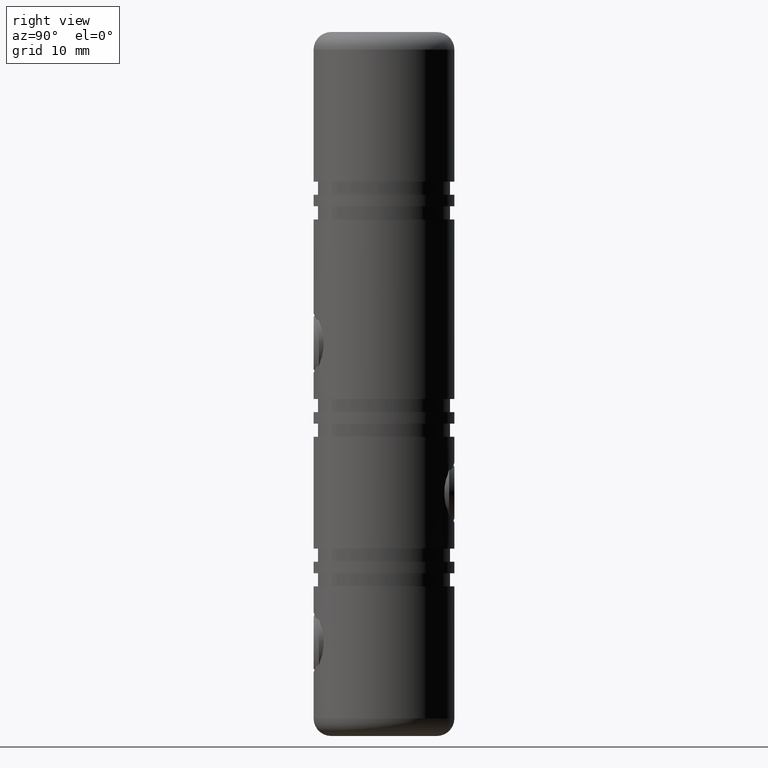
[diagram: clean part render]
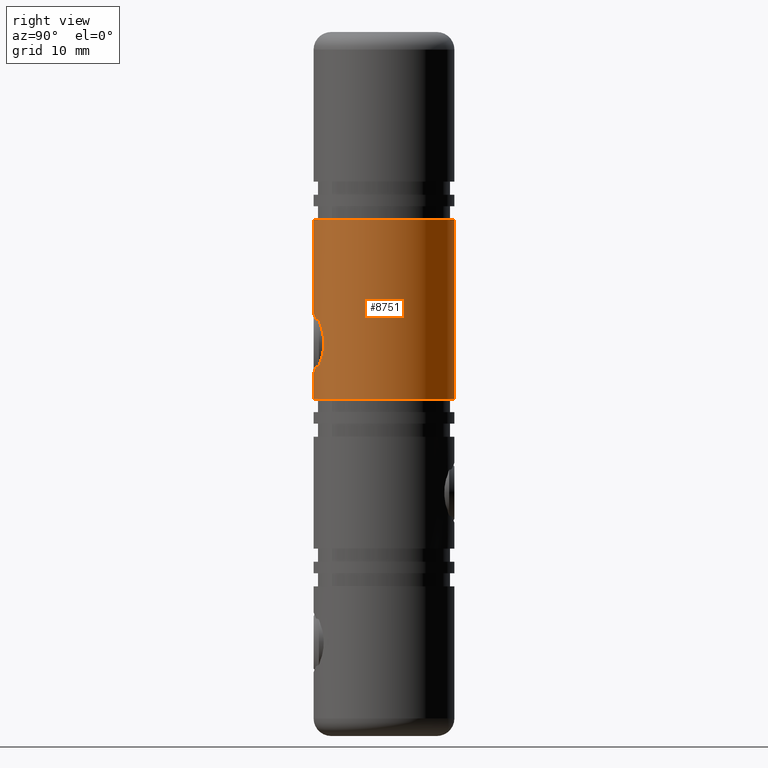
[diagram: same view with one face highlighted and labeled with its STEP entity id]
A machine part, right view. The second image highlights one B-rep face of the part: STEP entity #8751.
In plain terms, the highlighted cylindrical surface (partial cylindrical patch) has radius 8 mm, axis along (0, 0, 1).
Its self-contained STEP definition (entity closure, byte-faithful):
#218 = VERTEX_POINT ( 'NONE', #11704 ) ;
#317 = CARTESIAN_POINT ( 'NONE',  ( 3.377083083094456000, -7.252426248789273400, 5.103285964395587900 ) ) ;
#373 = CARTESIAN_POINT ( 'NONE',  ( 2.946162588092068100, -7.438906165836130800, 2.938674497496888400 ) ) ;
#820 = DIRECTION ( 'NONE',  ( 0.0000000000000000000, -1.000000000000000000, 0.0000000000000000000 ) ) ;
#826 = VERTEX_POINT ( 'NONE', #13082 ) ;
#1173 = ORIENTED_EDGE ( 'NONE', *, *, #14198, .T. ) ;
#1304 = CARTESIAN_POINT ( 'NONE',  ( 0.0000000000000000000, -7.999999999999984900, 1.249999999999996000 ) ) ;
#1361 = VERTEX_POINT ( 'NONE', #14774 ) ;
#1365 = AXIS2_PLACEMENT_3D ( 'NONE', #6512, #3832, #10785 ) ;
#1530 = CARTESIAN_POINT ( 'NONE',  ( 2.701287393388047700, -7.531277600479164400, 6.726361367731029400 ) ) ;
#1587 = CARTESIAN_POINT ( 'NONE',  ( 2.250321709453293000, -7.678725574128295200, 7.208289546428752600 ) ) ;
#1708 = CARTESIAN_POINT ( 'NONE',  ( 3.399927834273003000, -7.241580678833905400, 4.875250799605546500 ) ) ;
#2044 = ORIENTED_EDGE ( 'NONE', *, *, #16742, .T. ) ;
#2093 = VERTEX_POINT ( 'NONE', #1304 ) ;
#2097 = CIRCLE ( 'NONE', #1365, 7.999999999999984900 ) ;
#2242 = ORIENTED_EDGE ( 'NONE', *, *, #5490, .F. ) ;
#2623 = DIRECTION ( 'NONE',  ( -0.0000000000000000000, 5.922595424346115800E-017, 1.000000000000000000 ) ) ;
#2699 = DIRECTION ( 'NONE',  ( -0.0000000000000000000, 5.922595424346115800E-017, 1.000000000000000000 ) ) ;
#3084 = CARTESIAN_POINT ( 'NONE',  ( 3.378187306158738900, -7.251913695931520500, 4.203689532153308800 ) ) ;
#3142 = CARTESIAN_POINT ( 'NONE',  ( 2.561623328396617900, -7.580557876596306400, 2.403481479404935500 ) ) ;
#3173 = VECTOR ( 'NONE', #4015, 1000.000000000000000 ) ;
#3832 = DIRECTION ( 'NONE',  ( -0.0000000000000000000, 5.922595424346115800E-017, 1.000000000000000000 ) ) ;
#4015 = DIRECTION ( 'NONE',  ( -0.0000000000000000000, 5.922595424346115800E-017, 1.000000000000000000 ) ) ;
#4129 = VECTOR ( 'NONE', #2623, 1000.000000000000000 ) ;
#4252 = CARTESIAN_POINT ( 'NONE',  ( 1.518421302072229300, -7.857380380396133300, 1.599634141178118100 ) ) ;
#4491 = CARTESIAN_POINT ( 'NONE',  ( 1.713622867567703400, -7.816565416602419900, 1.705223448706502800 ) ) ;
#4833 = ORIENTED_EDGE ( 'NONE', *, *, #7416, .F. ) ;
#5490 = EDGE_CURVE ( 'NONE', #11441, #826, #12168, .T. ) ;
#5631 = CARTESIAN_POINT ( 'NONE',  ( 1.104433361339428800, -7.926175410825909900, 1.426560521180307000 ) ) ;
#5748 = CARTESIAN_POINT ( 'NONE',  ( 0.4514605358758933000, -7.990308472804947800, 8.027373976999609100 ) ) ;
#5808 = CARTESIAN_POINT ( 'NONE',  ( 3.289087680130576200, -7.292756952013720100, 3.759357118922046000 ) ) ;
#6499 = ORIENTED_EDGE ( 'NONE', *, *, #17101, .T. ) ;
#6512 = CARTESIAN_POINT ( 'NONE',  ( 0.0000000000000000000, -2.469722291952331200E-015, -1.700000000000013900 ) ) ;
#6784 = LINE ( 'NONE', #14992, #3173 ) ;
#7011 = CARTESIAN_POINT ( 'NONE',  ( 0.4541065086489173800, -7.990117268299885100, 1.273080807165897700 ) ) ;
#7127 = CARTESIAN_POINT ( 'NONE',  ( 2.945959785431274900, -7.438979555004714900, 6.361593133225530200 ) ) ;
#7190 = CARTESIAN_POINT ( 'NONE',  ( 3.052721761500027100, -7.395235532313893900, 3.136683952065348900 ) ) ;
#7231 = VECTOR ( 'NONE', #17158, 1000.000000000000000 ) ;
#7251 = CARTESIAN_POINT ( 'NONE',  ( 2.079259359964982200, -7.727354909873117400, 7.349091149184431500 ) ) ;
#7416 = EDGE_CURVE ( 'NONE', #826, #1361, #8215, .T. ) ;
#7460 = EDGE_CURVE ( 'NONE', #218, #2093, #15949, .T. ) ;
#7634 = DIRECTION ( 'NONE',  ( -0.0000000000000000000, 5.922595424346115800E-017, 1.000000000000000000 ) ) ;
#8215 = CIRCLE ( 'NONE', #17508, 7.999999999999983100 ) ;
#8397 = CARTESIAN_POINT ( 'NONE',  ( 0.0000000000000000000, -7.999999999999984900, 1.249999999999996000 ) ) ;
#8518 = CARTESIAN_POINT ( 'NONE',  ( 3.052572273714785600, -7.395296992258885800, 6.163601077100327800 ) ) ;
#8580 = CARTESIAN_POINT ( 'NONE',  ( 0.8919228570024732000, -7.953195566763620100, 7.938608400695355400 ) ) ;
#8751 = ADVANCED_FACE ( 'NONE', ( #14851 ), #16353, .T. ) ;
#9367 = CARTESIAN_POINT ( 'NONE',  ( 0.0000000000000000000, -7.999999999999983100, 40.00000000000000000 ) ) ;
#9477 = CARTESIAN_POINT ( 'NONE',  ( -8.690533494021589800E-021, -7.999999999999984900, 8.049999999999990100 ) ) ;
#9772 = CARTESIAN_POINT ( 'NONE',  ( 0.2239787353389016400, -7.999999999999986700, 8.049999999999993600 ) ) ;
#9891 = CARTESIAN_POINT ( 'NONE',  ( 2.562422619992452200, -7.580287893962848900, 6.895614284768082100 ) ) ;
#9909 = AXIS2_PLACEMENT_3D ( 'NONE', #17692, #2699, #12204 ) ;
#9954 = CARTESIAN_POINT ( 'NONE',  ( 1.714033983148292700, -7.816483921416006500, 7.594571279867495600 ) ) ;
#10204 = CARTESIAN_POINT ( 'NONE',  ( 0.0000000000000000000, -7.999999999999983100, 40.00000000000000000 ) ) ;
#10785 = DIRECTION ( 'NONE',  ( 0.0000000000000000000, -1.000000000000000000, 5.421010862427532600E-017 ) ) ;
#11280 = CARTESIAN_POINT ( 'NONE',  ( 3.400071815042919000, -7.241513078002110000, 4.426933073858969600 ) ) ;
#11328 = CARTESIAN_POINT ( 'NONE',  ( 2.700751742660142600, -7.531476546076896200, 2.572874824304251200 ) ) ;
#11441 = VERTEX_POINT ( 'NONE', #11638 ) ;
#11638 = CARTESIAN_POINT ( 'NONE',  ( -8.690533494021589800E-021, -7.999999999999984900, 8.049999999999990100 ) ) ;
#11704 = CARTESIAN_POINT ( 'NONE',  ( 0.0000000000000000000, -7.999999999999986700, -1.700000000000013500 ) ) ;
#12168 = LINE ( 'NONE', #10204, #7231 ) ;
#12204 = DIRECTION ( 'NONE',  ( 0.0000000000000000000, -1.000000000000000000, 0.0000000000000000000 ) ) ;
#12233 = B_SPLINE_CURVE_WITH_KNOTS ( 'NONE', 3,
 ( #9477, #9772, #5748, #8580, #16678, #15355, #9954, #7251, #1587, #9891, #1530, #7127, #8518, #16736, #15479, #317, #1708, #11280, #3084, #5808, #15413, #7190, #373, #11328, #3142, #12712, #12476, #4491, #4252, #5631, #15231, #7011, #16626, #8397 ),
 .UNSPECIFIED., .F., .F.,
 ( 4, 2, 2, 2, 2, 2, 2, 2, 2, 2, 2, 2, 2, 2, 2, 2, 4 ),
 ( 0.01075952590451985900, 0.01143140143656543400, 0.01210327696861100900, 0.01277515250065658400, 0.01344702803270215700, 0.01411890356474773200, 0.01479077909679330600, 0.01546265462883888100, 0.01613453016088445600, 0.01680640569293002900, 0.01747828122497560600, 0.01815015675702118200, 0.01882203228906675900, 0.01949390782111233200, 0.02016578335315790900, 0.02083765888520348200, 0.02150953441724906200 ),
 .UNSPECIFIED. ) ;
#12476 = CARTESIAN_POINT ( 'NONE',  ( 2.078157764837683400, -7.727642496177004700, 1.950097673295602600 ) ) ;
#12712 = CARTESIAN_POINT ( 'NONE',  ( 2.249526365061704800, -7.678958453456063500, 2.091017648975538100 ) ) ;
#13082 = CARTESIAN_POINT ( 'NONE',  ( 0.0000000000000000000, -7.999999999999984900, 18.70000000000000300 ) ) ;
#14198 = EDGE_CURVE ( 'NONE', #11441, #2093, #12233, .T. ) ;
#14774 = CARTESIAN_POINT ( 'NONE',  ( 9.797174393178804000E-016, 7.999999999999981300, 18.70000000000000300 ) ) ;
#14851 = FACE_OUTER_BOUND ( 'NONE', #16443, .T. ) ;
#14992 = CARTESIAN_POINT ( 'NONE',  ( 9.797174393178804000E-016, 7.999999999999983100, 40.00000000000000000 ) ) ;
#15231 = CARTESIAN_POINT ( 'NONE',  ( 0.8915802709335725100, -7.953192522683160300, 1.361401426654410600 ) ) ;
#15355 = CARTESIAN_POINT ( 'NONE',  ( 1.516685106667517500, -7.857686519964282500, 7.701142384964958500 ) ) ;
#15413 = CARTESIAN_POINT ( 'NONE',  ( 3.223514654248766000, -7.322402065263641900, 3.546284054697122800 ) ) ;
#15479 = CARTESIAN_POINT ( 'NONE',  ( 3.288445093137510400, -7.293045009710978000, 5.542349250607973200 ) ) ;
#15543 = VERTEX_POINT ( 'NONE', #17350 ) ;
#15865 = CARTESIAN_POINT ( 'NONE',  ( 0.0000000000000000000, -1.261512825385722600E-015, 18.70000000000000300 ) ) ;
#15949 = LINE ( 'NONE', #9367, #4129 ) ;
#16353 = CYLINDRICAL_SURFACE ( 'NONE', #9909, 7.999999999999983100 ) ;
#16443 = EDGE_LOOP ( 'NONE', ( #6499, #2044, #4833, #2242, #1173, #16711 ) ) ;
#16626 = CARTESIAN_POINT ( 'NONE',  ( 0.2273669206469673400, -7.999999999999984900, 1.249999999999996000 ) ) ;
#16678 = CARTESIAN_POINT ( 'NONE',  ( 1.104852776315199600, -7.926088032660501000, 7.873213289372160700 ) ) ;
#16711 = ORIENTED_EDGE ( 'NONE', *, *, #7460, .F. ) ;
#16736 = CARTESIAN_POINT ( 'NONE',  ( 3.223330730684855100, -7.322482781856726900, 5.754230368842561600 ) ) ;
#16742 = EDGE_CURVE ( 'NONE', #15543, #1361, #6784, .T. ) ;
#17101 = EDGE_CURVE ( 'NONE', #218, #15543, #2097, .T. ) ;
#17158 = DIRECTION ( 'NONE',  ( -0.0000000000000000000, 5.922595424346115800E-017, 1.000000000000000000 ) ) ;
#17350 = CARTESIAN_POINT ( 'NONE',  ( 9.797174393178805900E-016, 7.999999999999983100, -1.700000000000014400 ) ) ;
#17508 = AXIS2_PLACEMENT_3D ( 'NONE', #15865, #7634, #820 ) ;
#17692 = CARTESIAN_POINT ( 'NONE',  ( 0.0000000000000000000, 0.0000000000000000000, 40.00000000000000000 ) ) ;